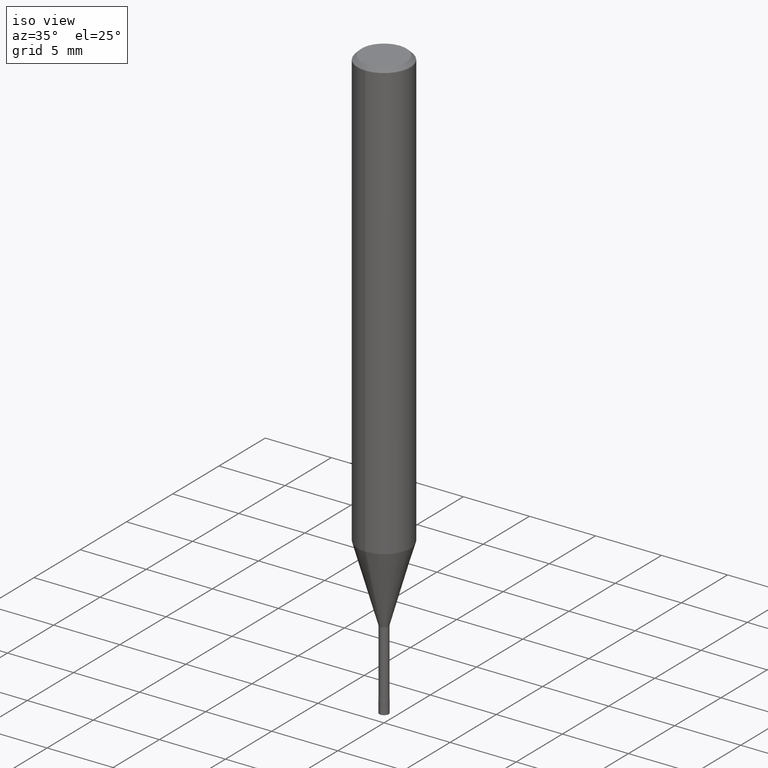
[diagram: clean part render]
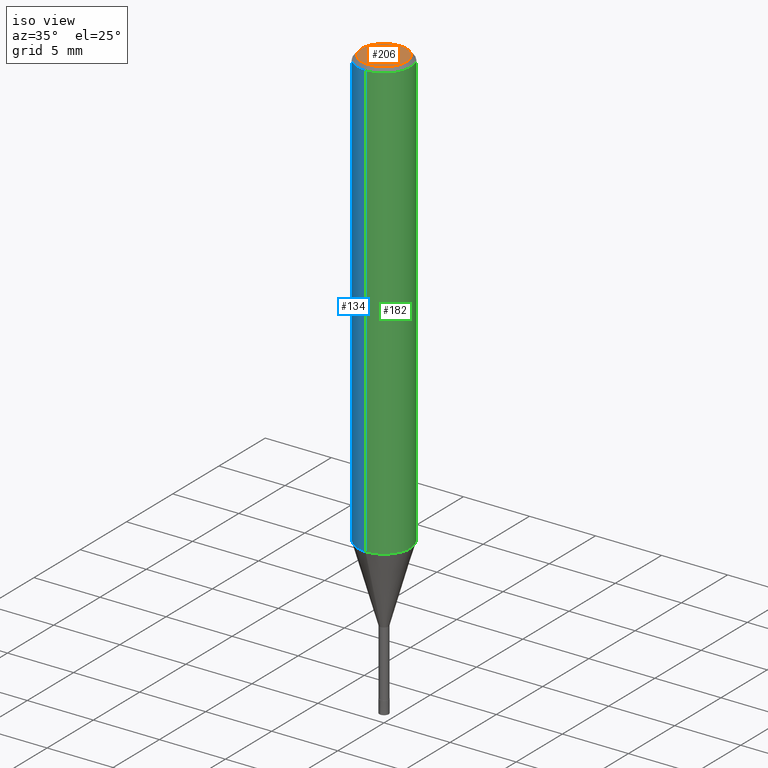
[diagram: same view with three faces highlighted in distinct colors, each labeled with its STEP entity id]
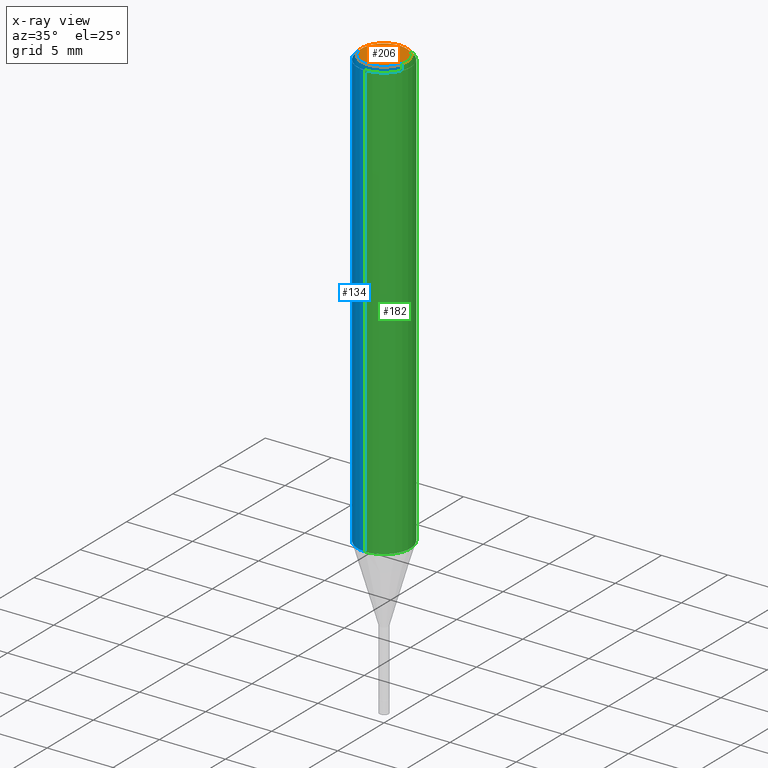
[diagram: x-ray of the same camera — body ghosted, the three highlighted faces saturated]
A machine part, iso view with three faces highlighted in distinct colors.
The next image is the same camera in x-ray (body ghosted, the three faces saturated) — at least one of them is partly hidden behind the body in this view.
Their STEP definitions:

[orange] entity #206 — the highlighted planar face has unit normal (-0, 0, 1).
#96=EDGE_CURVE('',#112,#178,#233,.T.);
#112=VERTEX_POINT('',#250);
#114=EDGE_CURVE('',#178,#112,#252,.T.);
#178=VERTEX_POINT('',#322);
#206=ADVANCED_FACE('',(#358),#359,.T.);
#233=CIRCLE('',#379,1.7);
#250=CARTESIAN_POINT('',(0.0,1.7,0.0));
#252=CIRCLE('',#403,1.7);
#322=CARTESIAN_POINT('',(2.08183080149804E-016,-1.7,0.0));
#358=FACE_OUTER_BOUND('',#536,.T.);
#359=PLANE('',#537);
#379=AXIS2_PLACEMENT_3D('',#542,#543,#544);
#403=AXIS2_PLACEMENT_3D('',#562,#563,#564);
#536=EDGE_LOOP('',(#706,#707));
#537=AXIS2_PLACEMENT_3D('',#708,#709,#710);
#542=CARTESIAN_POINT('',(0.0,0.0,0.0));
#543=DIRECTION('',(0.0,0.0,-1.0));
#544=DIRECTION('',(0.0,1.0,0.0));
#562=CARTESIAN_POINT('',(0.0,0.0,0.0));
#563=DIRECTION('',(0.0,0.0,-1.0));
#564=DIRECTION('',(0.0,1.0,0.0));
#706=ORIENTED_EDGE('',*,*,#96,.F.);
#707=ORIENTED_EDGE('',*,*,#114,.F.);
#708=CARTESIAN_POINT('',(0.0,0.85,0.0));
#709=DIRECTION('',(-0.0,0.0,1.0));
#710=DIRECTION('',(0.0,-1.0,0.0));

[blue] entity #134 — the highlighted cylindrical surface (edge-blend (fillet) strip) has radius 2 mm, axis along (-0, -0, 1).
#118=EDGE_CURVE('',#164,#150,#256,.T.);
#126=EDGE_CURVE('',#170,#186,#264,.T.);
#134=ADVANCED_FACE('',(#272),#273,.T.);
#136=EDGE_CURVE('',#150,#170,#275,.T.);
#150=VERTEX_POINT('',#292);
#152=EDGE_CURVE('',#164,#186,#294,.T.);
#164=VERTEX_POINT('',#308);
#170=VERTEX_POINT('',#314);
#186=VERTEX_POINT('',#331);
#256=LINE('',#410,#411);
#264=LINE('',#423,#424);
#272=FACE_OUTER_BOUND('',#435,.T.);
#273=CYLINDRICAL_SURFACE('',#436,2.0);
#275=CIRCLE('',#439,2.0);
#292=CARTESIAN_POINT('',(2.44921270764475E-016,-2.0,-0.299999999999997));
#294=CIRCLE('',#460,2.0);
#308=CARTESIAN_POINT('',(2.44921270764475E-016,-2.0,-33.211));
#314=CARTESIAN_POINT('',(0.0,2.0,-0.299999999999997));
#331=CARTESIAN_POINT('',(0.0,2.0,-33.211));
#410=CARTESIAN_POINT('',(2.44921270764475E-016,-2.0,-16.7555));
#411=VECTOR('',#566,1.0);
#423=CARTESIAN_POINT('',(-2.44921270764475E-016,2.0,-16.7555));
#424=VECTOR('',#571,1.0);
#435=EDGE_LOOP('',(#577,#578,#579,#580));
#436=AXIS2_PLACEMENT_3D('',#581,#582,#583);
#439=AXIS2_PLACEMENT_3D('',#584,#585,#586);
#460=AXIS2_PLACEMENT_3D('',#612,#613,#614);
#566=DIRECTION('',(-0.0,-0.0,1.0));
#571=DIRECTION('',(0.0,0.0,-1.0));
#577=ORIENTED_EDGE('',*,*,#126,.T.);
#578=ORIENTED_EDGE('',*,*,#152,.F.);
#579=ORIENTED_EDGE('',*,*,#118,.T.);
#580=ORIENTED_EDGE('',*,*,#136,.T.);
#581=CARTESIAN_POINT('',(0.0,0.0,-16.7555));
#582=DIRECTION('',(-0.0,-0.0,1.0));
#583=DIRECTION('',(0.0,1.0,0.0));
#584=CARTESIAN_POINT('',(0.0,0.0,-0.299999999999997));
#585=DIRECTION('',(0.0,0.0,-1.0));
#586=DIRECTION('',(0.0,1.0,0.0));
#612=CARTESIAN_POINT('',(0.0,0.0,-33.211));
#613=DIRECTION('',(0.0,0.0,-1.0));
#614=DIRECTION('',(0.0,1.0,0.0));

[green] entity #182 — the highlighted cylindrical surface (edge-blend (fillet) strip) has radius 2 mm, axis along (-0, -0, 1).
#102=EDGE_CURVE('',#186,#164,#240,.T.);
#118=EDGE_CURVE('',#164,#150,#256,.T.);
#126=EDGE_CURVE('',#170,#186,#264,.T.);
#150=VERTEX_POINT('',#292);
#164=VERTEX_POINT('',#308);
#170=VERTEX_POINT('',#314);
#182=ADVANCED_FACE('',(#326),#327,.T.);
#186=VERTEX_POINT('',#331);
#198=EDGE_CURVE('',#170,#150,#348,.T.);
#240=CIRCLE('',#389,2.0);
#256=LINE('',#410,#411);
#264=LINE('',#423,#424);
#292=CARTESIAN_POINT('',(2.44921270764475E-016,-2.0,-0.299999999999997));
#308=CARTESIAN_POINT('',(2.44921270764475E-016,-2.0,-33.211));
#314=CARTESIAN_POINT('',(0.0,2.0,-0.299999999999997));
#326=FACE_OUTER_BOUND('',#498,.T.);
#327=CYLINDRICAL_SURFACE('',#499,2.0);
#331=CARTESIAN_POINT('',(0.0,2.0,-33.211));
#348=CIRCLE('',#524,2.0);
#389=AXIS2_PLACEMENT_3D('',#552,#553,#554);
#410=CARTESIAN_POINT('',(2.44921270764475E-016,-2.0,-16.7555));
#411=VECTOR('',#566,1.0);
#423=CARTESIAN_POINT('',(-2.44921270764475E-016,2.0,-16.7555));
#424=VECTOR('',#571,1.0);
#498=EDGE_LOOP('',(#642,#643,#644,#645));
#499=AXIS2_PLACEMENT_3D('',#646,#647,#648);
#524=AXIS2_PLACEMENT_3D('',#685,#686,#687);
#552=CARTESIAN_POINT('',(0.0,0.0,-33.211));
#553=DIRECTION('',(0.0,0.0,-1.0));
#554=DIRECTION('',(0.0,1.0,0.0));
#566=DIRECTION('',(-0.0,-0.0,1.0));
#571=DIRECTION('',(0.0,0.0,-1.0));
#642=ORIENTED_EDGE('',*,*,#126,.F.);
#643=ORIENTED_EDGE('',*,*,#198,.T.);
#644=ORIENTED_EDGE('',*,*,#118,.F.);
#645=ORIENTED_EDGE('',*,*,#102,.F.);
#646=CARTESIAN_POINT('',(0.0,0.0,-16.7555));
#647=DIRECTION('',(-0.0,-0.0,1.0));
#648=DIRECTION('',(0.0,1.0,0.0));
#685=CARTESIAN_POINT('',(0.0,0.0,-0.299999999999997));
#686=DIRECTION('',(0.0,0.0,-1.0));
#687=DIRECTION('',(0.0,1.0,0.0));